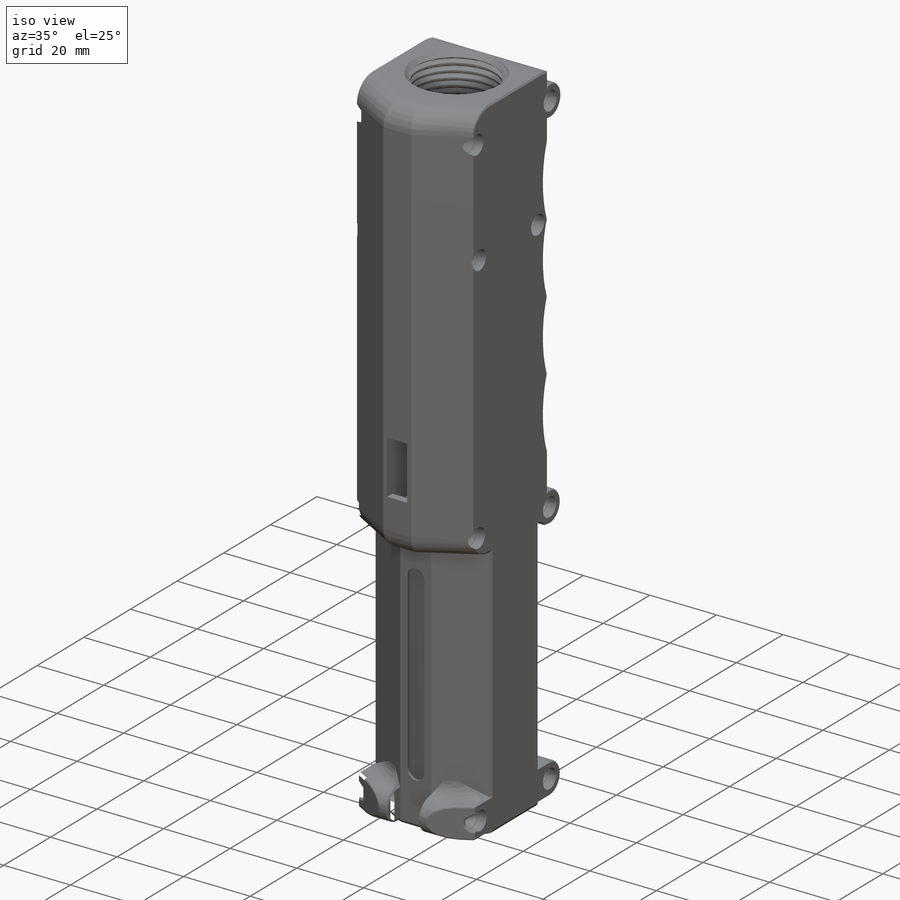
[diagram: iso view]
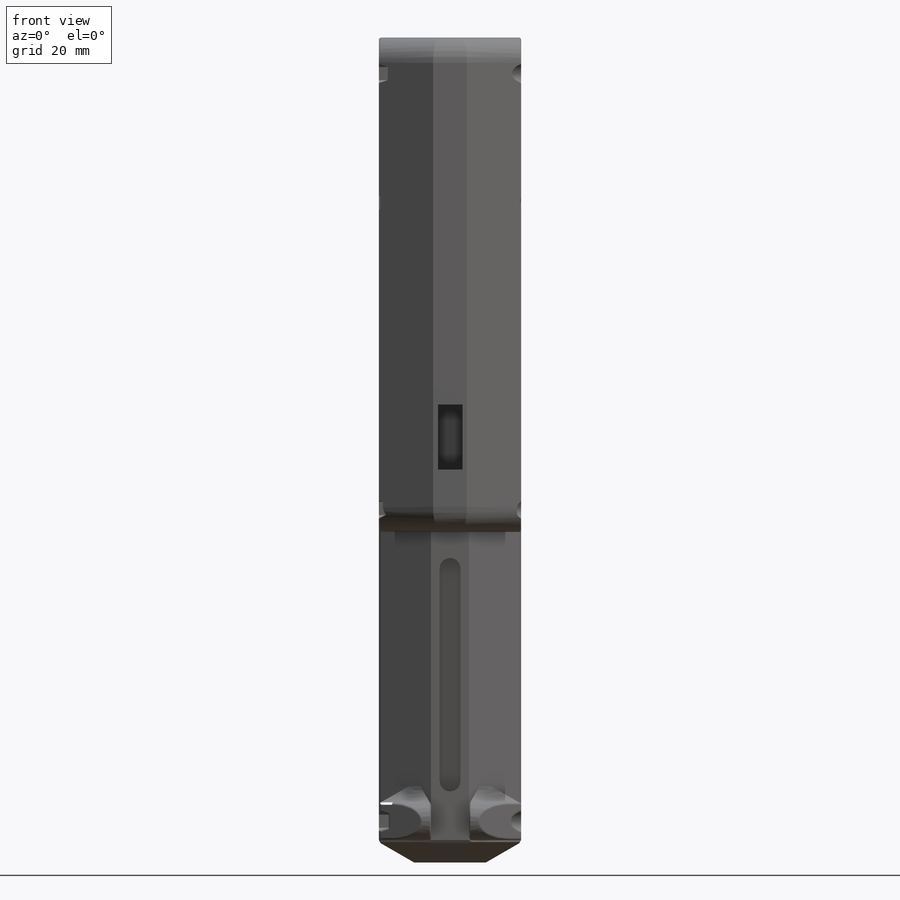
[diagram: front view]
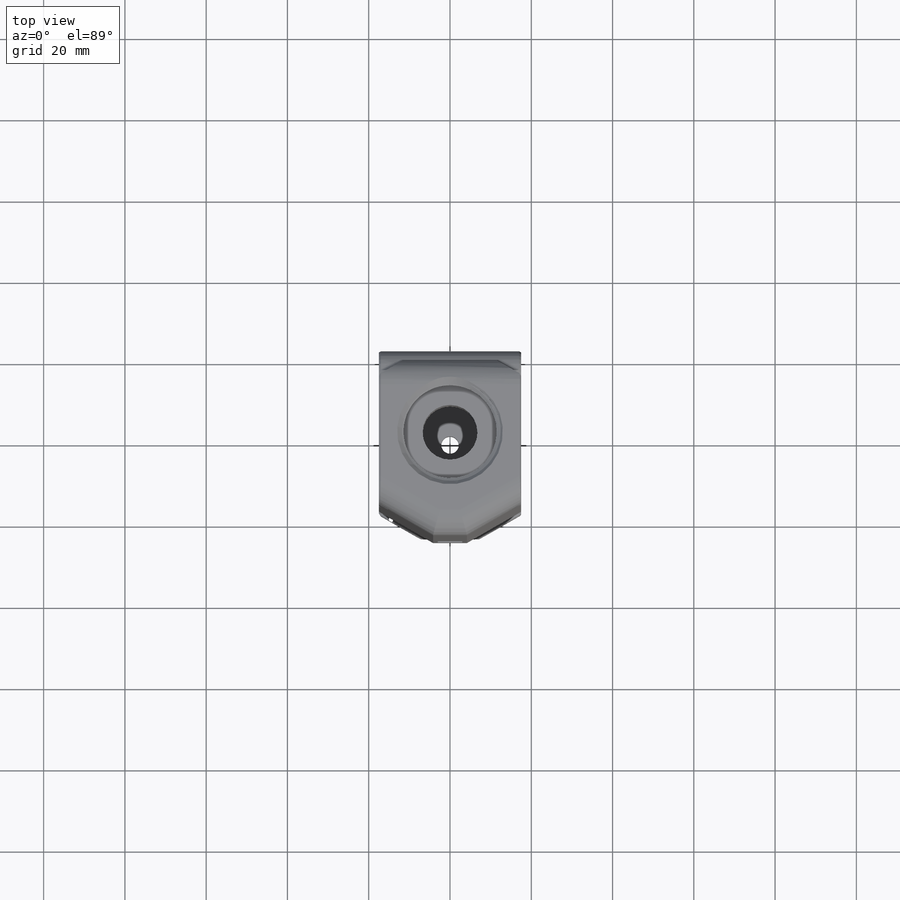
[diagram: top view]
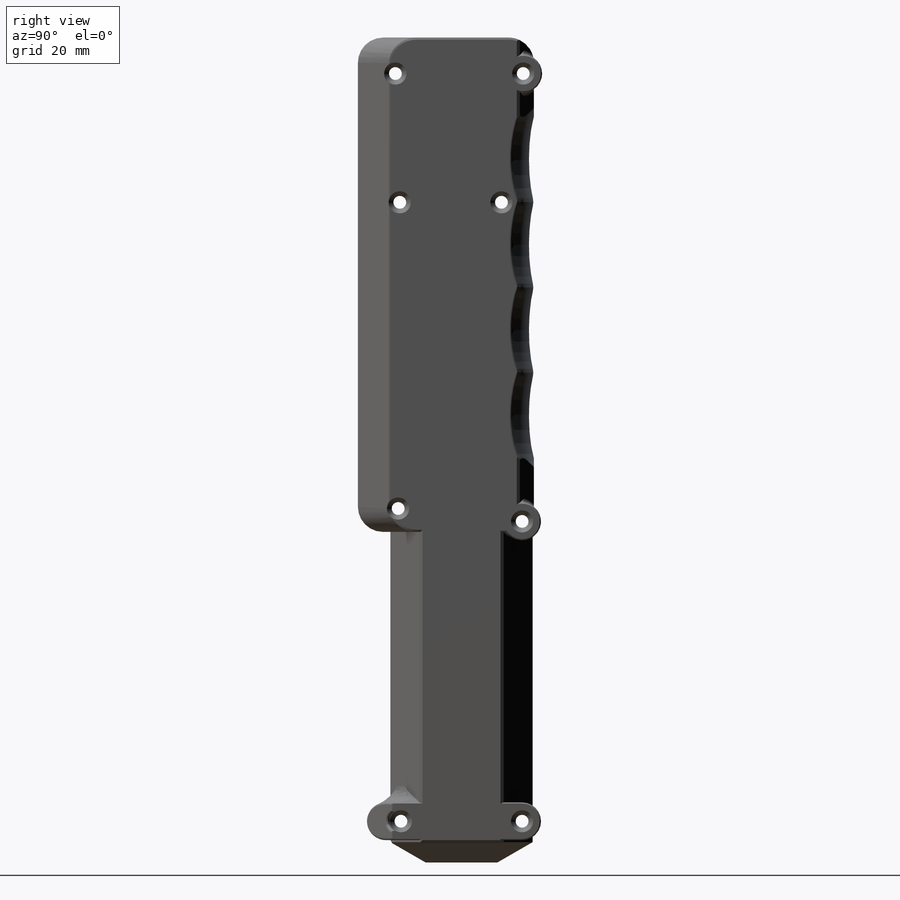
[diagram: right view]
SOLIDWORKS PART (.sldprt)
format: sldprt  version: not decoded by parser v0  size: 2,253,312 bytes
history: native  units: mm
features: sketch x32, cut_extrude x16, chamfer x13, extrude x11, fillet x9, plane x6, sweep x2, material x1, pattern_linear x1, helix x1 (+13 scaffold rows collapsed; 1 parser-record rows omitted)
feature tree (106):
  scaffold x13  (default folders/planes/origin — collapsed)
  material  "Material <not specified>"
  sketch  "Sketch2"  dims[c1.D1=23.0mm c1.D3=17.5mm c2.D3=30.0deg c2.D2=6.0mm]
  extrude  "Boss-Extrude1"  Depth=180mm
  sketch  "Sketch3"
  extrude  "Boss-Extrude2"  Depth=8mm
  chamfer  "Chamfer1"  Distance=5mm Angle=60deg
  chamfer  "Chamfer2"  Distance=1mm Angle=30deg
  sketch  "Sketch4"  dims[D1=4.3mm]
  cut_extrude  "Cut-Extrude1"  [1 undecoded]
  sketch  "Sketch5"  dims[D2=13.5mm D1=3.0mm]
  extrude  "Boss-Extrude3"  Depth=31.1mm
  parser-record x1  (decoder bookkeeping rows leaked as tree rows — omitted from the tree; the rows remain in map.json)
  plane  "Bottom of trigger housing"  Offset=8mm
  sketch  "Sketch13"  dims[D1=1.0mm D2=105.0mm]
  extrude  "Trigger housing"  [1 undecoded]
  sketch  "Sketch6"  dims[D1=23.02mm]
  extrude  "Boss-Extrude4"  Depth=15mm
  sketch  "Sketch34"
  extrude  "Boss-Extrude10"  [1 undecoded]
  sketch  "Sketch35"  dims[c1.D1=~7.698185mm c2.D1=60.0deg]
  cut_extrude  "Cut-Extrude14"  [1 undecoded]
  sketch  "Sketch36"  dims[c1.D1=~3.698185mm c2.D1=210.0deg c3.D1=~6.779323mm c4.D1=120.0deg c5.D1=~3.698185mm c6.D1=150.0deg c7.D1=4.0mm]
  extrude  "Boss-Extrude11"  [1 undecoded]
  sketch  "Sketch37"  dims[D1=1.0mm]
  plane  "Plane2"  Offset=30mm
  sketch  "Sketch38"
  plane  "Plane8"
  fillet  "Fillet12"  Radius=6.2mm
  chamfer  "Chamfer8"  Distance=0.5mm Angle=30deg
  sketch  "Sketch42"  dims[D1=26.0mm D2=6.0mm]
  sweep  "Cut-Sweep4"
  pattern_linear  "LPattern1"  Count1=4 Count2=1 Spacing1=21mm Spacing2=10mm
  fillet  "Fillet9"  Radius=0.75mm
  fillet  "Fillet10"  Radius=4mm
  chamfer  "Chamfer3"  Distance=4mm Angle=20deg
  fillet  "Fillet1"  Radius=10mm
  fillet  "Fillet2"  Radius=1mm
  sketch  "Sketch7"
  helix  "Helix/Spiral1"  Pitch=17mm
  plane  "Plane1"
  sketch  "Sketch43"  dims[c1.D1=5.5mm c1.D2=0.8mm c2.D1=5.6mm c2.D2=5.6mm c2.D3=5.6mm c2.D4=5.6mm c2.D5=5.6mm c2.D6=5.6mm c2.D7=5.5mm c3.D2=120.0deg]
  sketch  "Sketch44"  dims[D1=9.3mm D2=9.3mm D3=3.15mm D4=9.0mm]
  extrude  "Boss-Extrude13"  [1 undecoded]
  sketch  "Sketch46"  dims[D7=3.15mm D1=0.0mm D2=0.0mm D3=0.0mm D4=0.0mm D5=0.0mm D6=0.0mm]
  cut_extrude  "Cut-Extrude17"  [1 undecoded]
  cut_extrude  "Cut-Extrude16"  Depth=3mm
  sketch  "Sketch48"  dims[D1=5.6mm]
  cut_extrude  "Cut-Extrude19"  Depth=3mm
  chamfer  "Chamfer9"  Distance=2.6mm Angle=30deg
  sketch  "Sketch47"  dims[D1=5.65mm]
  cut_extrude  "Cut-Extrude18"  Depth=2.65mm
  chamfer  "Chamfer11"  Distance=0.5mm Angle=30deg
  fillet  "Fillet13"  Radius=1.2mm
  chamfer  "Chamfer10"  Distance=2mm Angle=30deg
  sketch  "Sketch30"
  cut_extrude  "Cut-Extrude13"  [1 undecoded]
  chamfer  "Chamfer6"  Distance=1.5mm Angle=45deg
  chamfer  "Chamfer7"  Distance=0.75mm Angle=45deg
  sketch  "Sketch49"  dims[D1=6.0mm D2=~5.196152mm]
  cut_extrude  "Cut-Extrude20"  [1 undecoded]
  chamfer  "Chamfer13"  Distance=0.5mm Angle=30deg
  sketch  "Sketch8"  dims[D1=2.0mm D2=0.5mm D3=0.25mm]
  sweep  "Cut-Sweep2"
  sketch  "Sketch9"  dims[D1=27.0mm]
  extrude  "Boss-Extrude5"  Depth=2.1mm
  plane  "Sear location"  Offset=3.25mm
  sketch  "Sketch11"  dims[D1=3.0mm D2=30.0mm]
  cut_extrude  "Trigger Slot"  Depth=5mm
  sketch  "Sketch14"  dims[D3=4.15mm D1=21.75mm D2=5.82mm]
  cut_extrude  "Cut-Extrude3"  Depth=10mm
  sketch  "Sketch16"  dims[D1=9.4mm D2=30.0mm]
  cut_extrude  "Cut-Extrude4"  Depth=3mm
  sketch  "Sketch18"  dims[D1=3.5mm D2=10.0mm]
  extrude  "Boss-Extrude6"  [1 undecoded]
  sketch  "Sketch20"  dims[D1=31.0mm D2=6.0mm D3=16.0mm]
  cut_extrude  "Cut-Extrude7"  [1 undecoded]
  sketch  "Sketch21"  dims[D1=3.0mm]
  cut_extrude  "Cut-Extrude8"  Depth=5mm
  sketch  "Sketch50"  dims[D1=2.55mm D2=9.0mm D3=12.0mm]
  cut_extrude  "Cut-Extrude21"  Depth=4.3mm
  sketch  "Sketch51"
  cut_extrude  "Cut-Extrude22"  Depth=1.6mm
  sketch  "Sketch52"
  cut_extrude  "Cut-Extrude23"  [1 undecoded]
  chamfer  "Chamfer14"  Distance=0.5mm Angle=30deg
  chamfer  "Chamfer15"  Distance=0.5mm Angle=30deg
  chamfer  "Chamfer16"  Distance=1.2mm Angle=30deg
  fillet  "Fillet14"  Radius=1mm
  fillet  "Fillet15"  Radius=4mm
  fillet  "Fillet16"  Radius=0.6mm
  plane  "Plane9"
  sketch  "Sketch53"  dims[c1.D1=1.2mm c1.D2=~2.193053mm c2.D2=55.0deg c2.D3=4.21mm]
  extrude  "Boss-Extrude14"  Depth=0.5mm
decode coverage: 64 of 85 modeling features carry decoded parameters
note: ~ marks probable driven/reference dimensions
note: 12 parameter values undecoded
summary: no parameter record found for 12 features
note: suppression state not decoded; provenance and decode notes live in map.json
